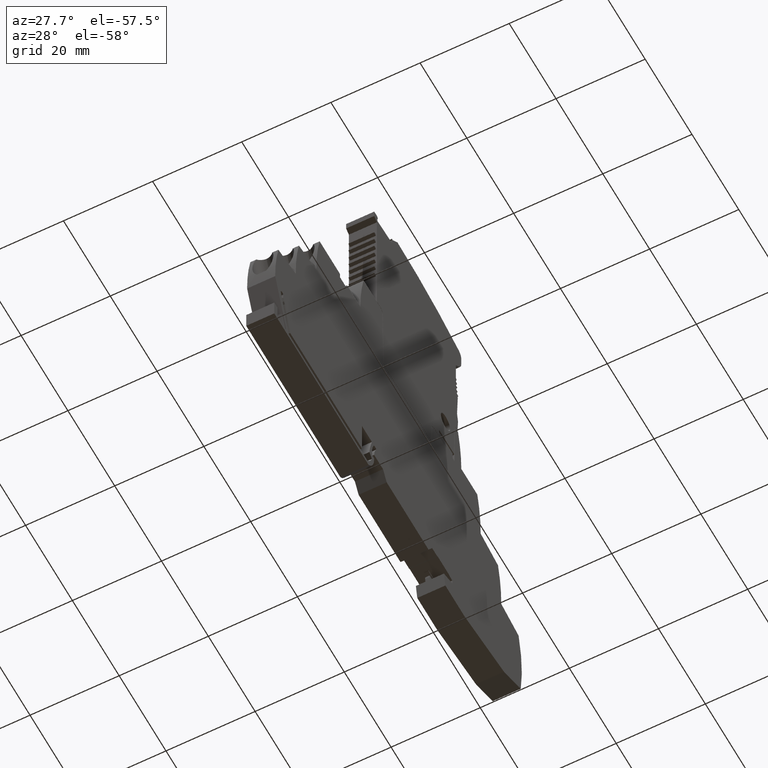
[diagram: clean part render]
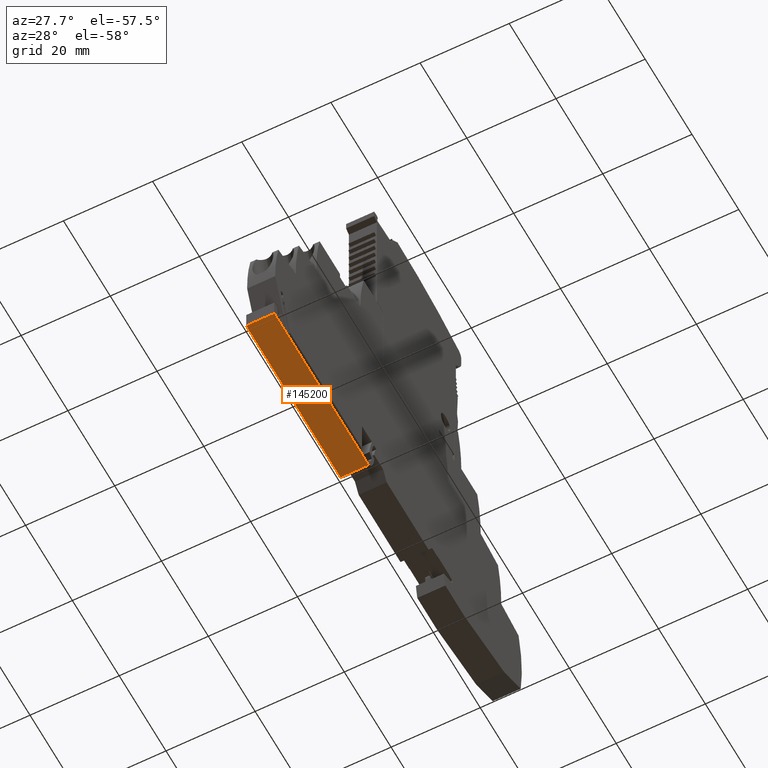
[diagram: same view with one face highlighted and labeled with its STEP entity id]
A machine part, auxiliary view. The second image highlights one B-rep face of the part: STEP entity #145200.
In plain terms, the highlighted planar face has unit normal (0, 0, 1).
Its self-contained STEP definition (entity closure, byte-faithful):
#20560=CARTESIAN_POINT('',(-76.0814532745701,-6.99999789892487,
-7.72466584046502E-9));
#20570=VERTEX_POINT('',#20560);
#20600=CARTESIAN_POINT('',(-36.6028890050387,-6.9999998587209,
-7.72466783503389E-9));
#20610=DIRECTION('',(-0.999999999999999,4.9642030929163E-8,
5.05228344487795E-17));
#20620=VECTOR('',#20610,1.);
#20630=LINE('',#20600,#20620);
#20640=CARTESIAN_POINT('',(-35.7706957610773,-6.99999990003275,
-7.72466787707875E-9));
#20650=VERTEX_POINT('',#20640);
#20660=EDGE_CURVE('',#20650,#20570,#20630,.T.);
#28210=CARTESIAN_POINT('',(-35.7706957610773,-6.99999990698495,
6.29999998742584));
#28220=VERTEX_POINT('',#28210);
#28250=CARTESIAN_POINT('',(0.,-7.00000168271493,6.3000000446248));
#28260=DIRECTION('',(0.999999999999999,-4.96420310428121E-8,
1.27233440234888E-9));
#28270=VECTOR('',#28260,1.);
#28280=LINE('',#28250,#28270);
#28290=CARTESIAN_POINT('',(-76.0814532745701,-6.99999790587703,
6.29999994782375));
#28300=VERTEX_POINT('',#28290);
#28310=EDGE_CURVE('',#28300,#28220,#28280,.T.);
#144480=CARTESIAN_POINT('',(-35.7706957610773,-6.99999990003275,
-7.72466787707876E-9));
#144490=DIRECTION('',(-4.25831752161686E-18,-1.10352358519E-9,1.));
#144500=VECTOR('',#144490,1.);
#144510=LINE('',#144480,#144500);
#144520=EDGE_CURVE('',#20650,#28220,#144510,.T.);
#145040=CARTESIAN_POINT('',(-75.0814532745701,-6.9999979485669,
-7.72466589098784E-9));
#145050=DIRECTION('',(4.96420310414081E-8,0.999999999999999,
1.10352358519E-9));
#145060=DIRECTION('',(-0.999999999999999,4.96420310414081E-8,
5.05228345664501E-17));
#145070=AXIS2_PLACEMENT_3D('',#145040,#145050,#145060);
#145080=PLANE('',#145070);
#145090=ORIENTED_EDGE('',*,*,#20660,.F.);
#145100=CARTESIAN_POINT('',(-76.0814532745701,-6.99999789892487,0.));
#145110=DIRECTION('',(4.25831741821928E-18,1.10352358519E-9,-1.));
#145120=VECTOR('',#145110,1.);
#145130=LINE('',#145100,#145120);
#145140=EDGE_CURVE('',#28300,#20570,#145130,.T.);
#145150=ORIENTED_EDGE('',*,*,#145140,.T.);
#145160=ORIENTED_EDGE('',*,*,#28310,.F.);
#145170=ORIENTED_EDGE('',*,*,#144520,.T.);
#145180=EDGE_LOOP('',(#145170,#145160,#145150,#145090));
#145190=FACE_OUTER_BOUND('',#145180,.T.);
#145200=ADVANCED_FACE('',(#145190),#145080,.F.);